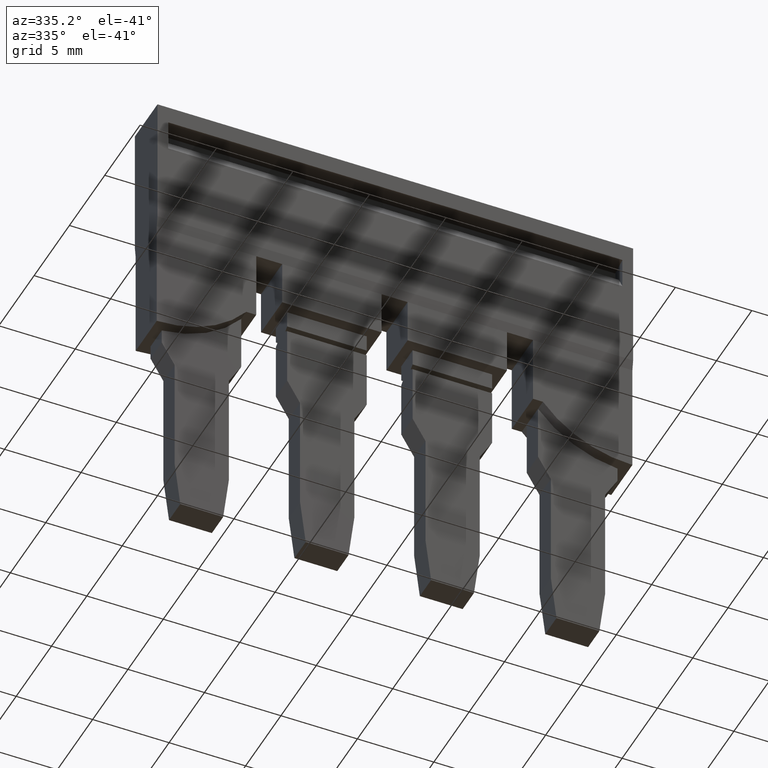
[diagram: clean part render]
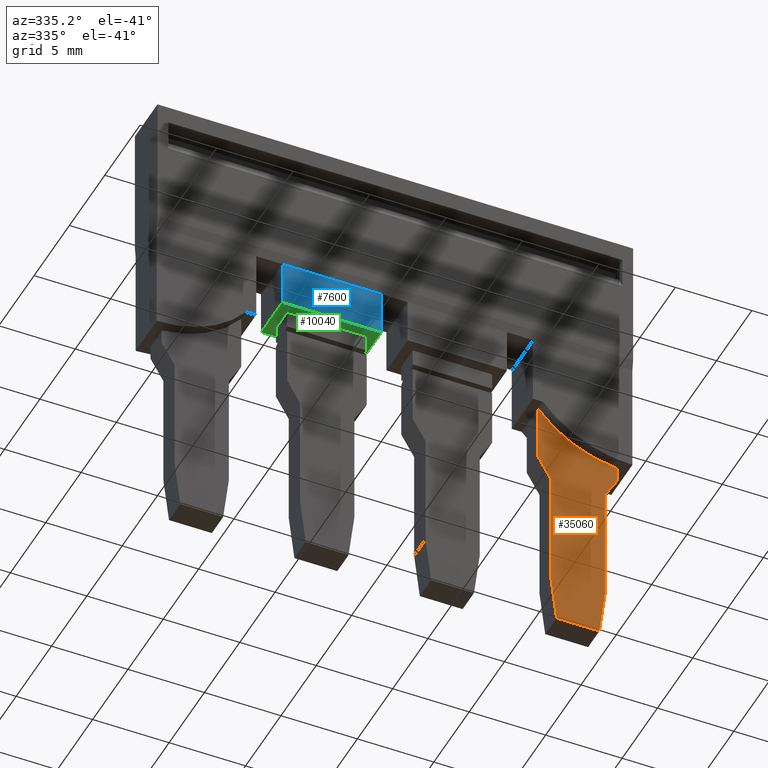
[diagram: same view with three faces highlighted in distinct colors, each labeled with its STEP entity id]
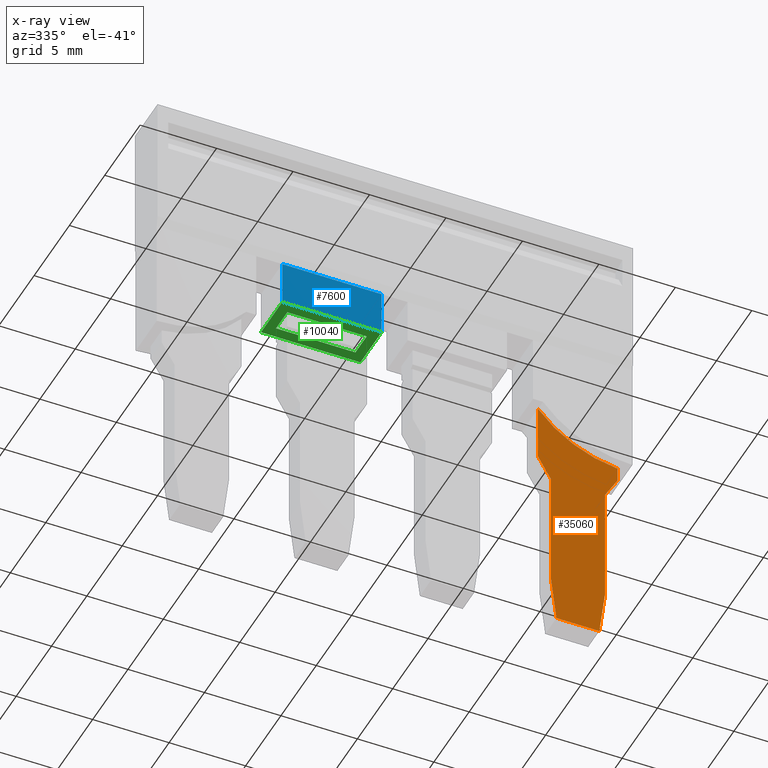
[diagram: x-ray of the same camera — body ghosted, the three highlighted faces saturated]
A machine part, auxiliary view with three faces highlighted in distinct colors.
The next image is the same camera in x-ray (body ghosted, the three faces saturated) — at least one of them is partly hidden behind the body in this view.
Their STEP definitions:

[orange] entity #35060 — the highlighted planar face has unit normal (0, 1, 0).
#14440=CARTESIAN_POINT('',(4.78553886079777,-20.0808348559681,
41.4599999999955));
#14450=VERTEX_POINT('',#14440);
#15370=CARTESIAN_POINT('',(4.78553886079778,-22.8893999442139,
36.2599999999955));
#15380=VERTEX_POINT('',#15370);
#15410=CARTESIAN_POINT('',(4.78553886079778,-15.4678098181019,
35.6099999999983));
#15420=DIRECTION('',(1.,0.,3.08148791101958E-33));
#15430=DIRECTION('',(0.,1.,0.));
#15440=AXIS2_PLACEMENT_3D('',#15410,#15420,#15430);
#15450=CIRCLE('',#15440,7.45);
#15460=EDGE_CURVE('',#14450,#15380,#15450,.T.);
#25300=CARTESIAN_POINT('',(4.78553886079777,-23.8389640912949,
41.4599999999955));
#25310=VERTEX_POINT('',#25300);
#25430=CARTESIAN_POINT('',(4.78553886079777,-24.2417559473249,
41.4599999999956));
#25440=DIRECTION('',(-3.97814054026543E-18,1.,-1.71532509900062E-14));
#25450=VECTOR('',#25440,1.);
#25460=LINE('',#25430,#25450);
#25470=EDGE_CURVE('',#25310,#14450,#25460,.T.);
#27920=CARTESIAN_POINT('',(4.78553886079778,-33.0323992863096,
37.0699999999525));
#27930=VERTEX_POINT('',#27920);
#27960=CARTESIAN_POINT('',(4.78553886079778,-12.8979338181015,
37.0699999999521));
#27970=DIRECTION('',(3.97814054026407E-18,-1.,1.95832508028661E-14));
#27980=VECTOR('',#27970,1.);
#27990=LINE('',#27960,#27980);
#28000=CARTESIAN_POINT('',(4.78553886079778,-25.2419252453502,
37.0699999999524));
#28010=VERTEX_POINT('',#28000);
#28020=EDGE_CURVE('',#28010,#27930,#27990,.T.);
#29420=CARTESIAN_POINT('',(4.78553886079777,-12.8979338181015,
40.6199999999954));
#29430=DIRECTION('',(3.97814054027117E-18,-1.,9.86325155142624E-15));
#29440=VECTOR('',#29430,1.);
#29450=LINE('',#29420,#29440);
#29460=CARTESIAN_POINT('',(4.78553886079777,-25.2938867696527,
40.6199999999955));
#29470=VERTEX_POINT('',#29460);
#29480=CARTESIAN_POINT('',(4.78553886079777,-33.0792532827655,
40.6199999999956));
#29490=VERTEX_POINT('',#29480);
#29500=EDGE_CURVE('',#29470,#29490,#29450,.T.);
#29890=CARTESIAN_POINT('',(4.78553886079778,-36.0978098181446,
38.8749840000005));
#29900=DIRECTION('',(7.34723449511374E-16,-4.78387892587514E-11,-1.));
#29910=VECTOR('',#29900,1.);
#29920=LINE('',#29890,#29910);
#29930=CARTESIAN_POINT('',(4.78553886079777,-36.0978098180789,
40.2493678612466));
#29940=VERTEX_POINT('',#29930);
#29950=CARTESIAN_POINT('',(4.78553886079778,-36.097809818213,
37.4463850860995));
#29960=VERTEX_POINT('',#29950);
#29970=EDGE_CURVE('',#29940,#29960,#29920,.T.);
#30940=CARTESIAN_POINT('',(4.78553886079778,-24.3577888801297,
36.0048917702258));
#30950=DIRECTION('',(-8.64074338180371E-17,-0.99254615164132,
0.121869343405167));
#30960=VECTOR('',#30950,1.);
#30970=LINE('',#30940,#30960);
#30980=EDGE_CURVE('',#27930,#29960,#30970,.T.);
#31600=CARTESIAN_POINT('',(4.78553886079777,-12.8979338181015,
43.0979544489054));
#31610=DIRECTION('',(9.71445146547012E-17,-0.992546151641323,
-0.121869343405138));
#31620=VECTOR('',#31610,1.);
#31630=LINE('',#31600,#31620);
#31640=EDGE_CURVE('',#29490,#29940,#31630,.T.);
#33000=CARTESIAN_POINT('',(4.78553886079778,-24.241755947325,
36.2599999999957));
#33010=DIRECTION('',(3.97814054026202E-18,-1.,2.21565029157125E-14));
#33020=VECTOR('',#33010,1.);
#33030=LINE('',#33000,#33020);
#33040=CARTESIAN_POINT('',(4.78553886079778,-23.8389640912943,
36.2599999999955));
#33050=VERTEX_POINT('',#33040);
#33060=EDGE_CURVE('',#15380,#33050,#33030,.T.);
#33990=CARTESIAN_POINT('',(4.78553886079778,-12.8979338181015,
29.9431932265557));
#34000=DIRECTION('',(3.88578058618805E-16,0.866025403784434,
-0.500000000000008));
#34010=VECTOR('',#34000,1.);
#34020=LINE('',#33990,#34010);
#34030=EDGE_CURVE('',#28010,#33050,#34020,.T.);
#34730=CARTESIAN_POINT('',(4.78553886079777,-12.8979338181015,
47.7768067734354));
#34740=DIRECTION('',(-3.88578058618805E-16,0.866025403784444,
0.499999999999991));
#34750=VECTOR('',#34740,1.);
#34760=LINE('',#34730,#34750);
#34770=EDGE_CURVE('',#29470,#25310,#34760,.T.);
#34890=CARTESIAN_POINT('',(4.78553886079777,-28.3075095874643,
48.4919910000512));
#34900=DIRECTION('',(-1.,-3.97814054027822E-18,-7.34723449510188E-16));
#34910=DIRECTION('',(-3.97814054027811E-18,1.,-1.41861192052219E-16));
#34920=AXIS2_PLACEMENT_3D('',#34890,#34900,#34910);
#34930=PLANE('',#34920);
#34940=ORIENTED_EDGE('',*,*,#31640,.T.);
#34950=ORIENTED_EDGE('',*,*,#29500,.T.);
#34960=ORIENTED_EDGE('',*,*,#34770,.F.);
#34970=ORIENTED_EDGE('',*,*,#25470,.F.);
#34980=ORIENTED_EDGE('',*,*,#15460,.F.);
#34990=ORIENTED_EDGE('',*,*,#33060,.F.);
#35000=ORIENTED_EDGE('',*,*,#34030,.T.);
#35010=ORIENTED_EDGE('',*,*,#28020,.F.);
#35020=ORIENTED_EDGE('',*,*,#30980,.F.);
#35030=ORIENTED_EDGE('',*,*,#29970,.T.);
#35040=EDGE_LOOP('',(#35030,#35020,#35010,#35000,#34990,#34980,#34970,
#34960,#34950,#34940));
#35050=FACE_OUTER_BOUND('',#35040,.T.);
#35060=ADVANCED_FACE('',(#35050),#34930,.F.);

[blue] entity #7600 — the highlighted planar face has unit normal (0, 1, 0).
#1460=CARTESIAN_POINT('',(5.4855388607976,-15.4678098181019,
38.8749840000005));
#1470=DIRECTION('',(-3.08148791101958E-33,1.23259516440783E-32,1.));
#1480=VECTOR('',#1470,1.);
#1490=LINE('',#1460,#1480);
#1500=CARTESIAN_POINT('',(5.4855388607976,-15.4678098181019,
58.5099999999988));
#1510=VERTEX_POINT('',#1500);
#2720=CARTESIAN_POINT('',(5.4855388607976,-4.22546081810149,
31.0700101999488));
#2730=DIRECTION('',(-1.,-0.,-3.08148791101958E-33));
#2740=DIRECTION('',(0.,-1.,0.));
#2750=AXIS2_PLACEMENT_3D('',#2720,#2730,#2740);
#2760=PLANE('',#2750);
#5650=CARTESIAN_POINT('',(5.4855388607976,-18.4678098181019,
58.5099999999988));
#5660=VERTEX_POINT('',#5650);
#5710=CARTESIAN_POINT('',(5.4855388607976,-12.8979338181015,
58.5099999999988));
#5720=DIRECTION('',(0.,1.,0.));
#5730=VECTOR('',#5720,1.);
#5740=LINE('',#5710,#5730);
#5750=EDGE_CURVE('',#5660,#1510,#5740,.T.);
#7390=CARTESIAN_POINT('',(5.4855388607976,-18.4678098181019,
38.8749840000005));
#7400=DIRECTION('',(3.08148791101958E-33,-1.23259516440783E-32,-1.));
#7410=VECTOR('',#7400,1.);
#7420=LINE('',#7390,#7410);
#7430=CARTESIAN_POINT('',(5.4855388607976,-18.4678098181019,
52.0099999999988));
#7440=VERTEX_POINT('',#7430);
#7450=EDGE_CURVE('',#5660,#7440,#7420,.T.);
#7460=ORIENTED_EDGE('',*,*,#7450,.T.);
#7470=ORIENTED_EDGE('',*,*,#5750,.F.);
#7480=CARTESIAN_POINT('',(5.4855388607976,-15.4678098181019,
52.0099999999988));
#7490=VERTEX_POINT('',#7480);
#7500=EDGE_CURVE('',#7490,#1510,#1490,.T.);
#7510=ORIENTED_EDGE('',*,*,#7500,.T.);
#7520=CARTESIAN_POINT('',(5.4855388607976,-12.8979338181015,
52.0099999999988));
#7530=DIRECTION('',(0.,-1.,0.));
#7540=VECTOR('',#7530,1.);
#7550=LINE('',#7520,#7540);
#7560=EDGE_CURVE('',#7490,#7440,#7550,.T.);
#7570=ORIENTED_EDGE('',*,*,#7560,.F.);
#7580=EDGE_LOOP('',(#7570,#7510,#7470,#7460));
#7590=FACE_OUTER_BOUND('',#7580,.T.);
#7600=ADVANCED_FACE('',(#7590),#2760,.F.);

[green] entity #10040 — the highlighted planar face has unit normal (-0, 0, -1).
#750=CARTESIAN_POINT('',(2.4855388607976,-18.4678098181019,
58.5099999999988));
#760=VERTEX_POINT('',#750);
#790=CARTESIAN_POINT('',(2.4855388607976,-18.4678098181019,
38.8749840000005));
#800=DIRECTION('',(3.08148791101958E-33,-1.23259516440783E-32,-1.));
#810=VECTOR('',#800,1.);
#820=LINE('',#790,#810);
#830=CARTESIAN_POINT('',(2.4855388607976,-18.4678098181019,
52.0099999999988));
#840=VERTEX_POINT('',#830);
#850=EDGE_CURVE('',#760,#840,#820,.T.);
#5610=CARTESIAN_POINT('',(5.58553886079759,-18.4678098181019,
58.5099999999988));
#5620=DIRECTION('',(1.,0.,3.08148791101958E-33));
#5630=VECTOR('',#5620,1.);
#5640=LINE('',#5610,#5630);
#5650=CARTESIAN_POINT('',(5.4855388607976,-18.4678098181019,
58.5099999999988));
#5660=VERTEX_POINT('',#5650);
#5670=EDGE_CURVE('',#760,#5660,#5640,.T.);
#7390=CARTESIAN_POINT('',(5.4855388607976,-18.4678098181019,
38.8749840000005));
#7400=DIRECTION('',(3.08148791101958E-33,-1.23259516440783E-32,-1.));
#7410=VECTOR('',#7400,1.);
#7420=LINE('',#7390,#7410);
#7430=CARTESIAN_POINT('',(5.4855388607976,-18.4678098181019,
52.0099999999988));
#7440=VERTEX_POINT('',#7430);
#7450=EDGE_CURVE('',#5660,#7440,#7420,.T.);
#9540=CARTESIAN_POINT('',(3.18553886080735,-18.4678098181019,
52.6599999999976));
#9550=DIRECTION('',(-3.79822709830392E-65,-1.,1.23259516440783E-32));
#9560=DIRECTION('',(-3.08148791101958E-33,1.23259516440783E-32,1.));
#9570=AXIS2_PLACEMENT_3D('',#9540,#9550,#9560);
#9580=PLANE('',#9570);
#9590=ORIENTED_EDGE('',*,*,#850,.T.);
#9600=ORIENTED_EDGE('',*,*,#5670,.F.);
#9610=ORIENTED_EDGE('',*,*,#7450,.F.);
#9620=CARTESIAN_POINT('',(5.58553886079759,-18.4678098181019,
52.0099999999988));
#9630=DIRECTION('',(-1.,0.,-3.08148791101958E-33));
#9640=VECTOR('',#9630,1.);
#9650=LINE('',#9620,#9640);
#9660=EDGE_CURVE('',#7440,#840,#9650,.T.);
#9670=ORIENTED_EDGE('',*,*,#9660,.F.);
#9680=EDGE_LOOP('',(#9670,#9610,#9600,#9590));
#9690=FACE_OUTER_BOUND('',#9680,.T.);
#9700=CARTESIAN_POINT('',(5.58553886079759,-18.4678098181019,
57.8599999999952));
#9710=DIRECTION('',(-1.,-4.52848116820967E-48,-3.67394039744206E-16));
#9720=VECTOR('',#9710,1.);
#9730=LINE('',#9700,#9720);
#9740=CARTESIAN_POINT('',(4.78553886079777,-18.4678098181019,
57.8599999999956));
#9750=VERTEX_POINT('',#9740);
#9760=CARTESIAN_POINT('',(3.18553886079776,-18.4678098181019,
57.8599999999952));
#9770=VERTEX_POINT('',#9760);
#9780=EDGE_CURVE('',#9750,#9770,#9730,.T.);
#9790=ORIENTED_EDGE('',*,*,#9780,.F.);
#9800=CARTESIAN_POINT('',(3.18553886079776,-18.4678098181019,
38.8749840000005));
#9810=DIRECTION('',(3.67394039744206E-16,-1.23259516440783E-32,-1.));
#9820=VECTOR('',#9810,1.);
#9830=LINE('',#9800,#9820);
#9840=CARTESIAN_POINT('',(3.18553886079776,-18.4678098181019,
52.6599999999952));
#9850=VERTEX_POINT('',#9840);
#9860=EDGE_CURVE('',#9770,#9850,#9830,.T.);
#9870=ORIENTED_EDGE('',*,*,#9860,.F.);
#9880=CARTESIAN_POINT('',(5.58553886079759,-18.4678098181019,
52.6599999999952));
#9890=DIRECTION('',(1.,4.52848116820967E-48,3.67394039744206E-16));
#9900=VECTOR('',#9890,1.);
#9910=LINE('',#9880,#9900);
#9920=CARTESIAN_POINT('',(4.78553886079777,-18.4678098181019,
52.6599999999953));
#9930=VERTEX_POINT('',#9920);
#9940=EDGE_CURVE('',#9850,#9930,#9910,.T.);
#9950=ORIENTED_EDGE('',*,*,#9940,.F.);
#9960=CARTESIAN_POINT('',(4.78553886079777,-18.4678098181019,
38.8749840000005));
#9970=DIRECTION('',(2.44929359829471E-16,-1.23259516440783E-32,-1.));
#9980=VECTOR('',#9970,1.);
#9990=LINE('',#9960,#9980);
#10000=EDGE_CURVE('',#9750,#9930,#9990,.T.);
#10010=ORIENTED_EDGE('',*,*,#10000,.T.);
#10020=EDGE_LOOP('',(#10010,#9950,#9870,#9790));
#10030=FACE_BOUND('',#10020,.T.);
#10040=ADVANCED_FACE('',(#9690,#10030),#9580,.T.);